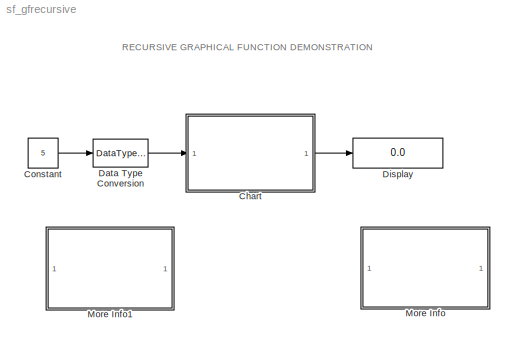
MODEL sf_gfrecursive
KIND model
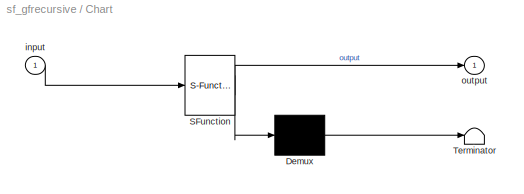
BLOCK [SubSystem] Chart
  MaskDescription = Stateflow diagram
  MaskDisplay = plot(sf('Private','sfblk','xIcon'),sf('Private','sfblk','yIcon'));text(0.5,0,sf('Private', 'sfblk', 'tIcon'),'HorizontalAl','Center','VerticalAl','Bottom');
  MaskIconFrame = off
  MaskIconOpaque = off
  MaskIconRotate = none
  MaskIconUnits = autoscale
  MaskSelfModifiable = on
  MaskType = Stateflow
  MinAlgLoopOccurrences = off
  Ports = [1, 1]
  PropExecContextAcrossSSBoundary = on
  RTWSystemCode = Auto
  TreatAsAtomicUnit = off
BLOCK [Demux] Chart/ Demux 
  Outputs = 1
  Ports = [1, 1]
BLOCK [S-Function] Chart/ SFunction 
  FunctionName = sf_sfun
  PortCounts = [1 2]
  Ports = [1, 2]
  Tag = Stateflow S-Function sf_gfrecursive 1
BLOCK [Terminator] Chart/ Terminator 
BLOCK [Inport] Chart/input
  IconDisplay = Port number
  LatchInput = off
  Port = 1
BLOCK [Outport] Chart/output
  IconDisplay = Port number
BLOCK [Constant] Constant
  Value = 5
BLOCK [DataTypeConversion] Data Type Conversion
  OutDataTypeMode = uint32
BLOCK [Display] Display
  Decimation = 1
  Ports = [1]
BLOCK [SubSystem] More Info
  MaskDisplay = disp('Double click\\nhere for\\ninformation on\\nthis demonstration')
  MaskIconFrame = on
  MaskIconOpaque = on
  MaskIconRotate = none
  MaskIconUnits = autoscale
  MinAlgLoopOccurrences = off
  Ports = []
  PropExecContextAcrossSSBoundary = on
  RTWSystemCode = Auto
  TreatAsAtomicUnit = off
BLOCK [SubSystem] More Info1
  MaskDisplay = disp('Double click\\nhere for<path> Help')
  MaskIconFrame = on
  MaskIconOpaque = on
  MaskIconRotate = none
  MaskIconUnits = autoscale
  MinAlgLoopOccurrences = off
  OpenFcn = simcad(bdroot);
  Ports = []
  PropExecContextAcrossSSBoundary = on
  RTWSystemCode = Auto
  TreatAsAtomicUnit = off
ANNOTATION (root): RECURSIVE GRAPHICAL FUNCTION DEMONSTRATION
ANNOTATION More Info: RECURSIVE GRAPHICAL FUNCTION DEMONSTRATION
ANNOTATION More Info: This demonstration illustrates how graphical functions can be used as recursive functions.\nThe graphical function in the chart (called FACTORIAL) returns the factorial value of the input. \nThis is possible because graphical functions can be called from within themselves or from within\n other graphical functions. The risk in using a recursive function, is the possibility of creating an\ninfinite...<+249ch>
LINE Chart/ Demux :1 -> Chart/ Terminator :1
LINE Chart/ SFunction :1 -> Chart/ Demux :1
LINE Chart/ SFunction :2 -> Chart/output:1
LINE Chart/input:1 -> Chart/ SFunction :1
LINE Chart:1 -> Display:1
LINE Constant:1 -> Data Type Conversion:1
LINE Data Type Conversion:1 -> Chart:1
CHART Chart states=1 transitions=5
  STATE_LABEL 'result = factorial(n)'
note: 1 file-system path scrubbed to <path> (not preserved elsewhere — flat text is the only slx artifact)
